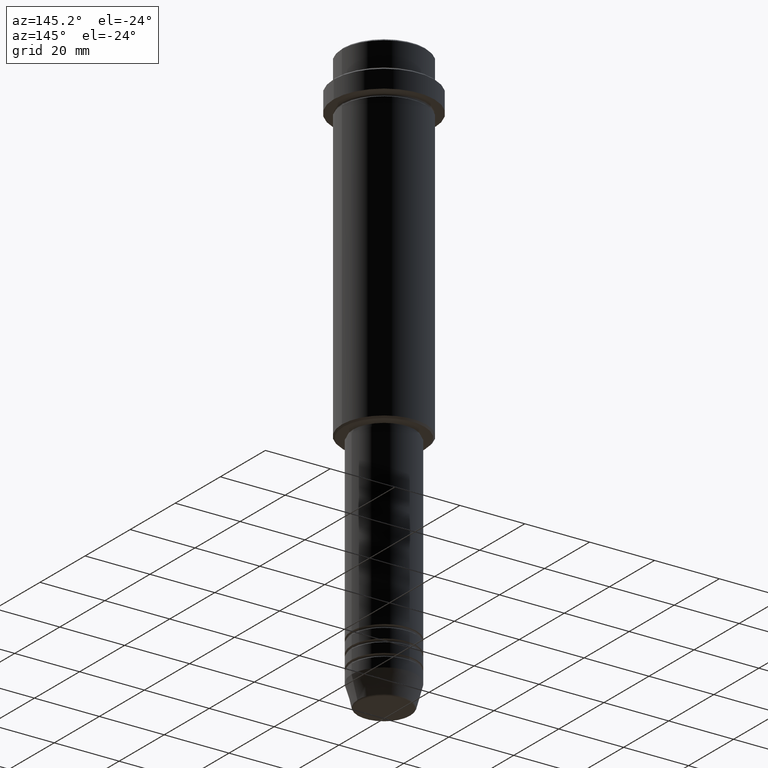
[diagram: clean part render]
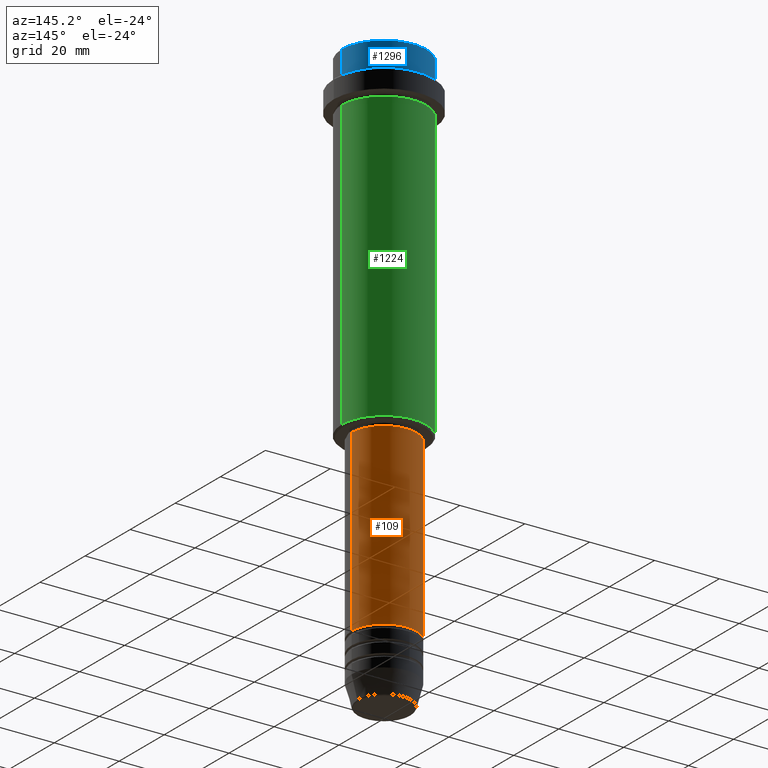
[diagram: same view with three faces highlighted in distinct colors, each labeled with its STEP entity id]
A machine part, auxiliary view with three faces highlighted in distinct colors.
Their STEP definitions:

[orange] entity #109 — the highlighted cylindrical surface (partial cylindrical patch) has radius 10 mm, axis along (-0, -0, 1).
#50 = FACE_OUTER_BOUND ( 'NONE', #535, .T. ) ;
#103 = CARTESIAN_POINT ( 'NONE',  ( 10.00000000000000178, 0.000000000000000000, -105.9999999999999858 ) ) ;
#109 = ADVANCED_FACE ( 'NONE', ( #50 ), #1036, .T. ) ;
#117 = CARTESIAN_POINT ( 'NONE',  ( -10.00000000000000000, 1.224646799147353256E-15, -160.9999999999998579 ) ) ;
#129 = VERTEX_POINT ( 'NONE', #810 ) ;
#161 = VECTOR ( 'NONE', #379, 1000.000000000000000 ) ;
#216 = VERTEX_POINT ( 'NONE', #913 ) ;
#274 = DIRECTION ( 'NONE',  ( -0.000000000000000000, -0.000000000000000000, 1.000000000000000000 ) ) ;
#279 = AXIS2_PLACEMENT_3D ( 'NONE', #948, #274, #1149 ) ;
#284 = LINE ( 'NONE', #728, #1374 ) ;
#300 = VERTEX_POINT ( 'NONE', #103 ) ;
#373 = CARTESIAN_POINT ( 'NONE',  ( -10.00000000000000178, 1.224646799147353454E-15, 0.000000000000000000 ) ) ;
#379 = DIRECTION ( 'NONE',  ( -0.000000000000000000, -0.000000000000000000, 1.000000000000000000 ) ) ;
#421 = DIRECTION ( 'NONE',  ( -0.000000000000000000, -0.000000000000000000, 1.000000000000000000 ) ) ;
#491 = LINE ( 'NONE', #373, #161 ) ;
#512 = ORIENTED_EDGE ( 'NONE', *, *, #621, .F. ) ;
#535 = EDGE_LOOP ( 'NONE', ( #944, #884, #512, #574 ) ) ;
#574 = ORIENTED_EDGE ( 'NONE', *, *, #709, .F. ) ;
#588 = DIRECTION ( 'NONE',  ( 1.000000000000000000, 0.000000000000000000, 0.000000000000000000 ) ) ;
#598 = AXIS2_PLACEMENT_3D ( 'NONE', #607, #619, #816 ) ;
#607 = CARTESIAN_POINT ( 'NONE',  ( 0.000000000000000000, 0.000000000000000000, 0.000000000000000000 ) ) ;
#619 = DIRECTION ( 'NONE',  ( -0.000000000000000000, -0.000000000000000000, 1.000000000000000000 ) ) ;
#621 = EDGE_CURVE ( 'NONE', #300, #129, #1329, .T. ) ;
#698 = DIRECTION ( 'NONE',  ( -0.000000000000000000, -0.000000000000000000, 1.000000000000000000 ) ) ;
#709 = EDGE_CURVE ( 'NONE', #216, #300, #284, .T. ) ;
#728 = CARTESIAN_POINT ( 'NONE',  ( 10.00000000000000178, 0.000000000000000000, 0.000000000000000000 ) ) ;
#810 = CARTESIAN_POINT ( 'NONE',  ( -10.00000000000000178, 1.224646799147353454E-15, -105.9999999999999858 ) ) ;
#816 = DIRECTION ( 'NONE',  ( 1.000000000000000000, 0.000000000000000000, 0.000000000000000000 ) ) ;
#884 = ORIENTED_EDGE ( 'NONE', *, *, #1001, .T. ) ;
#895 = AXIS2_PLACEMENT_3D ( 'NONE', #910, #698, #588 ) ;
#910 = CARTESIAN_POINT ( 'NONE',  ( 0.000000000000000000, 0.000000000000000000, -105.9999999999999858 ) ) ;
#913 = CARTESIAN_POINT ( 'NONE',  ( 10.00000000000000000, 0.000000000000000000, -160.9999999999998579 ) ) ;
#944 = ORIENTED_EDGE ( 'NONE', *, *, #1229, .T. ) ;
#948 = CARTESIAN_POINT ( 'NONE',  ( 0.000000000000000000, 0.000000000000000000, -160.9999999999998579 ) ) ;
#1001 = EDGE_CURVE ( 'NONE', #1384, #129, #491, .T. ) ;
#1036 = CYLINDRICAL_SURFACE ( 'NONE', #598, 10.00000000000000178 ) ;
#1053 = CIRCLE ( 'NONE', #279, 10.00000000000000000 ) ;
#1149 = DIRECTION ( 'NONE',  ( 1.000000000000000000, 0.000000000000000000, 0.000000000000000000 ) ) ;
#1229 = EDGE_CURVE ( 'NONE', #216, #1384, #1053, .T. ) ;
#1329 = CIRCLE ( 'NONE', #895, 10.00000000000000178 ) ;
#1374 = VECTOR ( 'NONE', #421, 1000.000000000000000 ) ;
#1384 = VERTEX_POINT ( 'NONE', #117 ) ;

[blue] entity #1296 — the highlighted cylindrical surface (partial cylindrical patch) has radius 13 mm, axis along (-0, -0, 1).
#16 = DIRECTION ( 'NONE',  ( 1.000000000000000000, 0.000000000000000000, 0.000000000000000000 ) ) ;
#28 = AXIS2_PLACEMENT_3D ( 'NONE', #859, #750, #945 ) ;
#30 = CARTESIAN_POINT ( 'NONE',  ( 12.99999999999999822, 0.000000000000000000, -0.5000000000000038858 ) ) ;
#54 = DIRECTION ( 'NONE',  ( -0.000000000000000000, -0.000000000000000000, 1.000000000000000000 ) ) ;
#126 = DIRECTION ( 'NONE',  ( 1.000000000000000000, 0.000000000000000000, 0.000000000000000000 ) ) ;
#166 = VERTEX_POINT ( 'NONE', #1027 ) ;
#177 = ORIENTED_EDGE ( 'NONE', *, *, #385, .T. ) ;
#184 = CIRCLE ( 'NONE', #28, 12.99999999999999822 ) ;
#287 = ORIENTED_EDGE ( 'NONE', *, *, #488, .T. ) ;
#298 = DIRECTION ( 'NONE',  ( -0.000000000000000000, -0.000000000000000000, 1.000000000000000000 ) ) ;
#321 = AXIS2_PLACEMENT_3D ( 'NONE', #1108, #1228, #16 ) ;
#365 = AXIS2_PLACEMENT_3D ( 'NONE', #513, #441, #126 ) ;
#385 = EDGE_CURVE ( 'NONE', #166, #848, #428, .T. ) ;
#388 = VECTOR ( 'NONE', #298, 1000.000000000000000 ) ;
#397 = CYLINDRICAL_SURFACE ( 'NONE', #365, 12.99999999999999822 ) ;
#409 = VERTEX_POINT ( 'NONE', #30 ) ;
#428 = LINE ( 'NONE', #1088, #388 ) ;
#439 = VECTOR ( 'NONE', #54, 1000.000000000000000 ) ;
#441 = DIRECTION ( 'NONE',  ( -0.000000000000000000, -0.000000000000000000, 1.000000000000000000 ) ) ;
#451 = ORIENTED_EDGE ( 'NONE', *, *, #1061, .F. ) ;
#488 = EDGE_CURVE ( 'NONE', #1246, #166, #1098, .T. ) ;
#505 = FACE_OUTER_BOUND ( 'NONE', #963, .T. ) ;
#513 = CARTESIAN_POINT ( 'NONE',  ( 0.000000000000000000, 0.000000000000000000, 0.000000000000000000 ) ) ;
#631 = ORIENTED_EDGE ( 'NONE', *, *, #832, .T. ) ;
#695 = LINE ( 'NONE', #1125, #439 ) ;
#750 = DIRECTION ( 'NONE',  ( 0.000000000000000000, 0.000000000000000000, -1.000000000000000000 ) ) ;
#832 = EDGE_CURVE ( 'NONE', #848, #409, #184, .T. ) ;
#848 = VERTEX_POINT ( 'NONE', #972 ) ;
#859 = CARTESIAN_POINT ( 'NONE',  ( 0.000000000000000000, 0.000000000000000000, -0.5000000000000038858 ) ) ;
#945 = DIRECTION ( 'NONE',  ( 1.000000000000000000, 0.000000000000000000, 0.000000000000000000 ) ) ;
#963 = EDGE_LOOP ( 'NONE', ( #287, #177, #631, #451 ) ) ;
#972 = CARTESIAN_POINT ( 'NONE',  ( -12.99999999999999822, 1.592040838891558898E-15, -0.5000000000000038858 ) ) ;
#1027 = CARTESIAN_POINT ( 'NONE',  ( -12.99999999999999822, 1.592040838891558898E-15, -7.999999999999998224 ) ) ;
#1061 = EDGE_CURVE ( 'NONE', #1246, #409, #695, .T. ) ;
#1088 = CARTESIAN_POINT ( 'NONE',  ( -12.99999999999999822, 1.592040838891558898E-15, 0.000000000000000000 ) ) ;
#1098 = CIRCLE ( 'NONE', #321, 12.99999999999999822 ) ;
#1108 = CARTESIAN_POINT ( 'NONE',  ( 0.000000000000000000, 0.000000000000000000, -7.999999999999998224 ) ) ;
#1125 = CARTESIAN_POINT ( 'NONE',  ( 12.99999999999999822, 0.000000000000000000, 0.000000000000000000 ) ) ;
#1228 = DIRECTION ( 'NONE',  ( -0.000000000000000000, -0.000000000000000000, 1.000000000000000000 ) ) ;
#1246 = VERTEX_POINT ( 'NONE', #1379 ) ;
#1296 = ADVANCED_FACE ( 'NONE', ( #505 ), #397, .T. ) ;
#1379 = CARTESIAN_POINT ( 'NONE',  ( 12.99999999999999822, 0.000000000000000000, -7.999999999999998224 ) ) ;

[green] entity #1224 — the highlighted cylindrical surface (partial cylindrical patch) has radius 13 mm, axis along (-0, -0, 1).
#17 = EDGE_CURVE ( 'NONE', #1055, #747, #433, .T. ) ;
#18 = DIRECTION ( 'NONE',  ( -0.000000000000000000, -0.000000000000000000, 1.000000000000000000 ) ) ;
#40 = DIRECTION ( 'NONE',  ( 1.000000000000000000, 0.000000000000000000, 0.000000000000000000 ) ) ;
#174 = CARTESIAN_POINT ( 'NONE',  ( -13.00000000000000000, 1.592040838891559095E-15, 0.000000000000000000 ) ) ;
#176 = EDGE_CURVE ( 'NONE', #1055, #1294, #1364, .T. ) ;
#311 = EDGE_LOOP ( 'NONE', ( #1356, #381, #984, #1280 ) ) ;
#381 = ORIENTED_EDGE ( 'NONE', *, *, #569, .T. ) ;
#433 = CIRCLE ( 'NONE', #1233, 13.00000000000000000 ) ;
#569 = EDGE_CURVE ( 'NONE', #747, #714, #1264, .T. ) ;
#575 = VECTOR ( 'NONE', #1019, 1000.000000000000000 ) ;
#584 = EDGE_CURVE ( 'NONE', #1294, #714, #805, .T. ) ;
#601 = CARTESIAN_POINT ( 'NONE',  ( 13.00000000000000000, 0.000000000000000000, -104.4999999999999574 ) ) ;
#633 = DIRECTION ( 'NONE',  ( 1.000000000000000000, 0.000000000000000000, 0.000000000000000000 ) ) ;
#673 = AXIS2_PLACEMENT_3D ( 'NONE', #1392, #1368, #633 ) ;
#714 = VERTEX_POINT ( 'NONE', #1068 ) ;
#747 = VERTEX_POINT ( 'NONE', #1087 ) ;
#805 = CIRCLE ( 'NONE', #1118, 13.00000000000000000 ) ;
#889 = DIRECTION ( 'NONE',  ( -1.000000000000000000, 0.000000000000000000, 0.000000000000000000 ) ) ;
#912 = VECTOR ( 'NONE', #1020, 1000.000000000000000 ) ;
#930 = CARTESIAN_POINT ( 'NONE',  ( 13.00000000000000000, 0.000000000000000000, 0.000000000000000000 ) ) ;
#984 = ORIENTED_EDGE ( 'NONE', *, *, #584, .F. ) ;
#1019 = DIRECTION ( 'NONE',  ( -0.000000000000000000, -0.000000000000000000, 1.000000000000000000 ) ) ;
#1020 = DIRECTION ( 'NONE',  ( -0.000000000000000000, -0.000000000000000000, 1.000000000000000000 ) ) ;
#1044 = CARTESIAN_POINT ( 'NONE',  ( 13.00000000000000000, 0.000000000000000000, -15.99999999999997335 ) ) ;
#1046 = DIRECTION ( 'NONE',  ( -0.000000000000000000, -0.000000000000000000, 1.000000000000000000 ) ) ;
#1054 = CYLINDRICAL_SURFACE ( 'NONE', #673, 13.00000000000000000 ) ;
#1055 = VERTEX_POINT ( 'NONE', #601 ) ;
#1068 = CARTESIAN_POINT ( 'NONE',  ( -13.00000000000000000, 1.592040838891559095E-15, -15.99999999999997335 ) ) ;
#1087 = CARTESIAN_POINT ( 'NONE',  ( -13.00000000000000000, 1.592040838891559095E-15, -104.4999999999999574 ) ) ;
#1118 = AXIS2_PLACEMENT_3D ( 'NONE', #1341, #1046, #40 ) ;
#1120 = CARTESIAN_POINT ( 'NONE',  ( 0.000000000000000000, 0.000000000000000000, -104.4999999999999574 ) ) ;
#1224 = ADVANCED_FACE ( 'NONE', ( #1269 ), #1054, .T. ) ;
#1233 = AXIS2_PLACEMENT_3D ( 'NONE', #1120, #18, #889 ) ;
#1264 = LINE ( 'NONE', #174, #575 ) ;
#1269 = FACE_OUTER_BOUND ( 'NONE', #311, .T. ) ;
#1280 = ORIENTED_EDGE ( 'NONE', *, *, #176, .F. ) ;
#1294 = VERTEX_POINT ( 'NONE', #1044 ) ;
#1341 = CARTESIAN_POINT ( 'NONE',  ( 0.000000000000000000, 0.000000000000000000, -15.99999999999997335 ) ) ;
#1356 = ORIENTED_EDGE ( 'NONE', *, *, #17, .T. ) ;
#1364 = LINE ( 'NONE', #930, #912 ) ;
#1368 = DIRECTION ( 'NONE',  ( -0.000000000000000000, -0.000000000000000000, 1.000000000000000000 ) ) ;
#1392 = CARTESIAN_POINT ( 'NONE',  ( 0.000000000000000000, 0.000000000000000000, 0.000000000000000000 ) ) ;